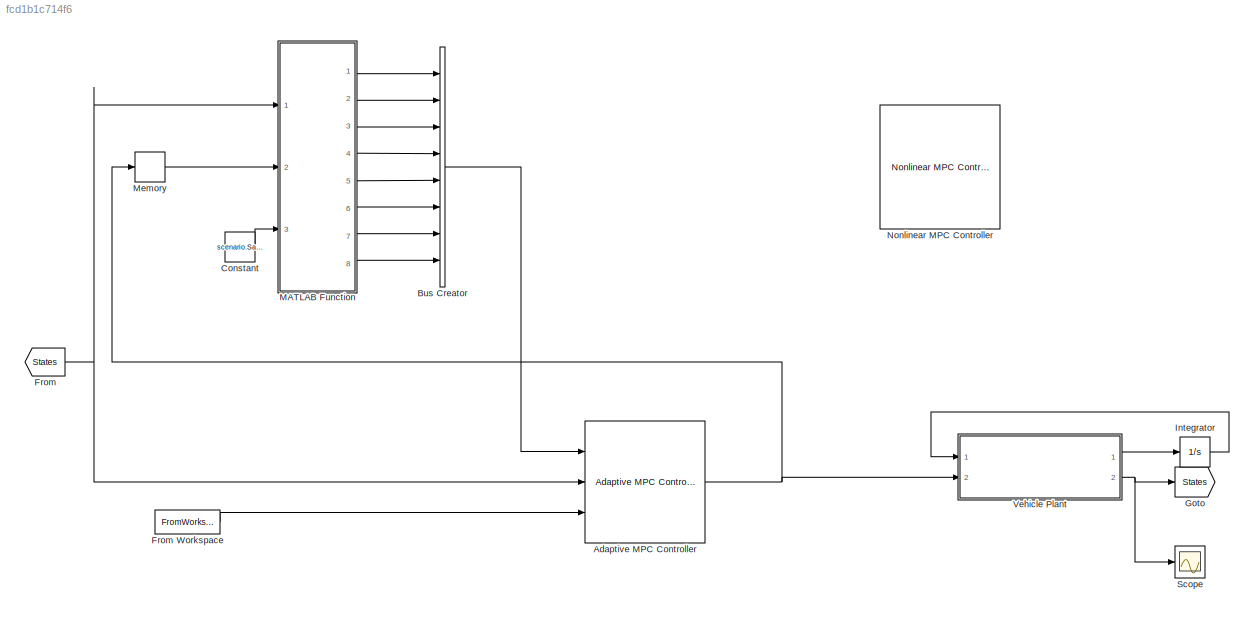
MODEL slx_fcd1b1c714f6
KIND model
CONFIG AbsTol = auto
CONFIG EnableMultiTasking = off
CONFIG FixedStep = auto
CONFIG MaxStep = auto
CONFIG MinStep = auto
CONFIG RelTol = 1e-3
CONFIG SampleTimeConstraint = Unconstrained
CONFIG Solver = VariableStepAuto
CONFIG SolverName = VariableStepAuto
CONFIG StartTime = 0.0
CONFIG StopTime = 10.0
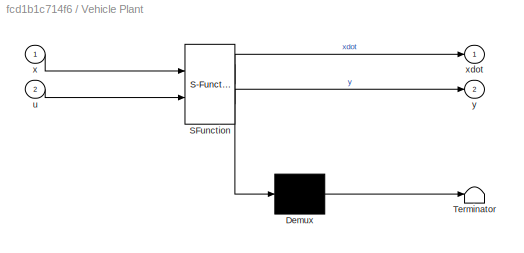
BLOCK [SubSystem]  Vehicle Plant
  ErrorFcn = Stateflow.Translate.translate
  PermitHierarchicalResolution = ExplicitOnly
  Ports = [2, 2]
  RequestExecContextInheritance = off
  SFBlockType = MATLAB Function
  TreatAsAtomicUnit = on
BLOCK [Demux]  Vehicle Plant/ Demux 
  Outputs = 1
  Ports = [1, 1]
BLOCK [S-Function]  Vehicle Plant/ SFunction 
  EnableBusSupport = on
  FunctionName = sf_sfun
  PortCounts = [2 3]
  Ports = [2, 3]
  SFcnIsStateOwnerBlock = off
  SFunctionDeploymentMode = off
  Tag = Stateflow S-Function 2
BLOCK [Terminator]  Vehicle Plant/ Terminator 
BLOCK [Inport]  Vehicle Plant/u
  Port = 2
BLOCK [Inport]  Vehicle Plant/x
BLOCK [Outport]  Vehicle Plant/xdot
BLOCK [Outport]  Vehicle Plant/y
  Port = 2
BLOCK [Reference] Adaptive MPC Controller  REF=mpclib/Adaptive MPC Controller  (lib defined in mdl_ae329e0e0455)
  Ports = [3, 1]
  SCDEnableBlockLinearizationSpecification = on
  SourceBlock = mpclib/Adaptive MPC Controller
  SourceProductBaseCode = MP
  SourceType = Adaptive MPC
BLOCK [BusCreator] Bus Creator
  DisplayOption = bar
  InheritFromInputs = on
  Inputs = 8
  Ports = [8, 1]
BLOCK [Constant] Constant
  Value = scenario.SampleTime
BLOCK [From] From
  GotoTag = States
BLOCK [FromWorkspace] From Workspace
  VariableName = traiettoria_mat
BLOCK [Goto] Goto
  GotoTag = States
BLOCK [Integrator] Integrator
  Ports = [1, 1]
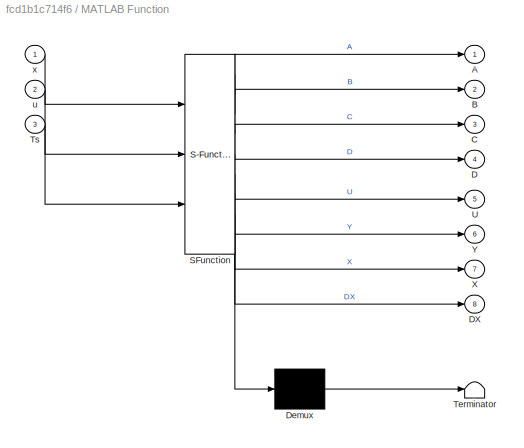
BLOCK [SubSystem] MATLAB Function
  ErrorFcn = Stateflow.Translate.translate
  PermitHierarchicalResolution = ExplicitOnly
  Ports = [3, 8]
  RequestExecContextInheritance = off
  SFBlockType = MATLAB Function
  TreatAsAtomicUnit = on
BLOCK [Demux] MATLAB Function/ Demux 
  Outputs = 1
  Ports = [1, 1]
BLOCK [S-Function] MATLAB Function/ SFunction 
  EnableBusSupport = on
  FunctionName = sf_sfun
  PortCounts = [3 9]
  Ports = [3, 9]
  SFcnIsStateOwnerBlock = off
  SFunctionDeploymentMode = off
  Tag = Stateflow S-Function 1
BLOCK [Terminator] MATLAB Function/ Terminator 
BLOCK [Outport] MATLAB Function/A
BLOCK [Outport] MATLAB Function/B
  Port = 2
BLOCK [Outport] MATLAB Function/C
  Port = 3
BLOCK [Outport] MATLAB Function/D
  Port = 4
BLOCK [Outport] MATLAB Function/DX
  Port = 8
BLOCK [Inport] MATLAB Function/Ts
  Port = 3
BLOCK [Outport] MATLAB Function/U
  Port = 5
BLOCK [Outport] MATLAB Function/X
  Port = 7
BLOCK [Outport] MATLAB Function/Y
  Port = 6
BLOCK [Inport] MATLAB Function/u
  Port = 2
BLOCK [Inport] MATLAB Function/x
BLOCK [Memory] Memory
BLOCK [Reference] Nonlinear MPC Controller  REF=mpclib/Nonlinear MPC Controller  (lib defined in mdl_ae329e0e0455)
  Ports = [3, 1]
  SCDEnableBlockLinearizationSpecification = on
  SourceBlock = mpclib/Nonlinear MPC Controller
  SourceProductBaseCode = MP
  SourceType = NonlinearMPC
BLOCK [Scope] Scope
  Floating = off
  NumInputPorts = 1
  Ports = [1]
  ScopeSpecificationString = Simulink.scopes.TimeScopeBlockCfg('CurrentConfiguration', extmgr.ConfigurationSet(extmgr.Configuration('Core','General UI',true),extmgr.Configuration('Core','Source UI',true),extmgr.Configuration('Sources','WiredSimulink',true),extmgr.Configuration('Visuals','Time Domain',true),extmgr.Configuration('Tools','Plot Navigation',true),extmgr.Configuration('Tools','Measurements',true,'Version','2020a'))...<+19ch>
LINE  Vehicle Plant:1 -> Integrator:1
NET  Vehicle Plant:2 -> Goto:1, Scope:1
NET Adaptive MPC Controller:1 ->  Vehicle Plant:2, Memory:1
LINE Bus Creator:1 -> Adaptive MPC Controller:1
LINE Constant:1 -> MATLAB Function:3
LINE From Workspace:1 -> Adaptive MPC Controller:3
NET From:1 -> Adaptive MPC Controller:2, MATLAB Function:1
LINE Integrator:1 ->  Vehicle Plant:1
LINE MATLAB Function:1 -> Bus Creator:1
LINE MATLAB Function:2 -> Bus Creator:2
LINE MATLAB Function:3 -> Bus Creator:3
LINE MATLAB Function:4 -> Bus Creator:4
LINE MATLAB Function:5 -> Bus Creator:5
LINE MATLAB Function:6 -> Bus Creator:6
LINE MATLAB Function:7 -> Bus Creator:7
LINE MATLAB Function:8 -> Bus Creator:8
LINE Memory:1 -> MATLAB Function:2
note: NET lines group one-source signal fan-out (src -> all destinations, sorted); 1:1 wires keep LINE
CHART MATLAB Function states=1 transitions=1
  STATE_LABEL 'eML_blk_kernel()'
  STATE_LABEL 'SCRIPT:\nfunction [A,B,C,D,U,Y,X,DX] = fcn(x,u,Ts)\n[Ac,Bc,Cd,Dd,U,Y,X,DX] = obstacleVehicleModelDT(Ts,x,u);'
CHART  Vehicle Plant states=1 transitions=1
  STATE_LABEL 'eML_blk_kernel()'
  STATE_LABEL 'SCRIPT:\nfunction [xdot,y] = obstacleVehicleModelCT(x,u)\n% The ego car has rectangular shaper with a length of 5 meters and width of\n% 2 meters. The model has four states:\n%\n% * |xPos| - Global horizontal position of the car center\n% * |yPos| - Global vertical position of the car center\n% * |theta| - Heading angle of the car (0 when facing east, counterclockwise positive)\n% * |V| - Speed of the car...<+583ch>'
CHART  states=0 transitions=0
CHART  states=0 transitions=0
